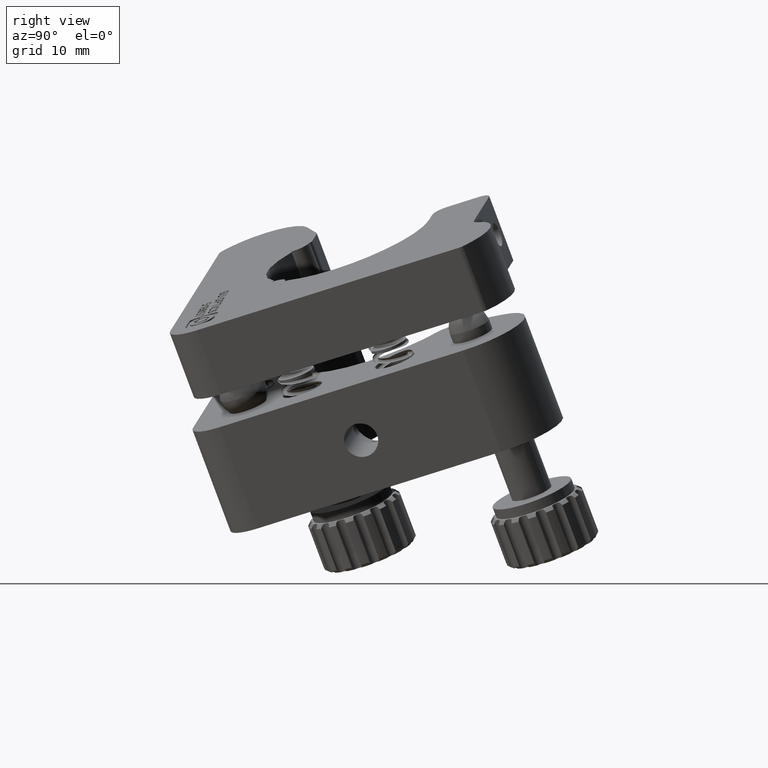
[diagram: clean part render]
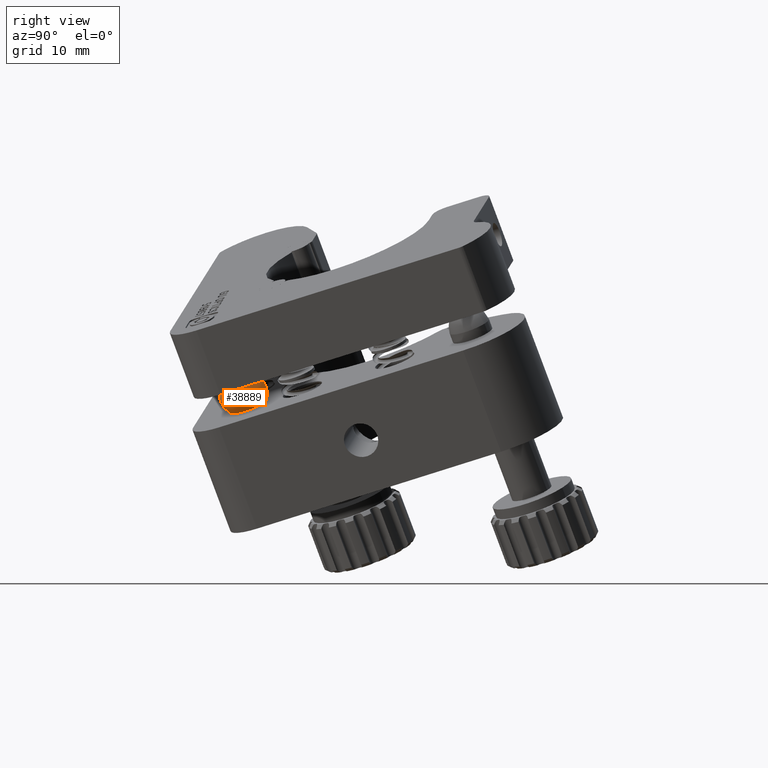
[diagram: same view with one face highlighted and labeled with its STEP entity id]
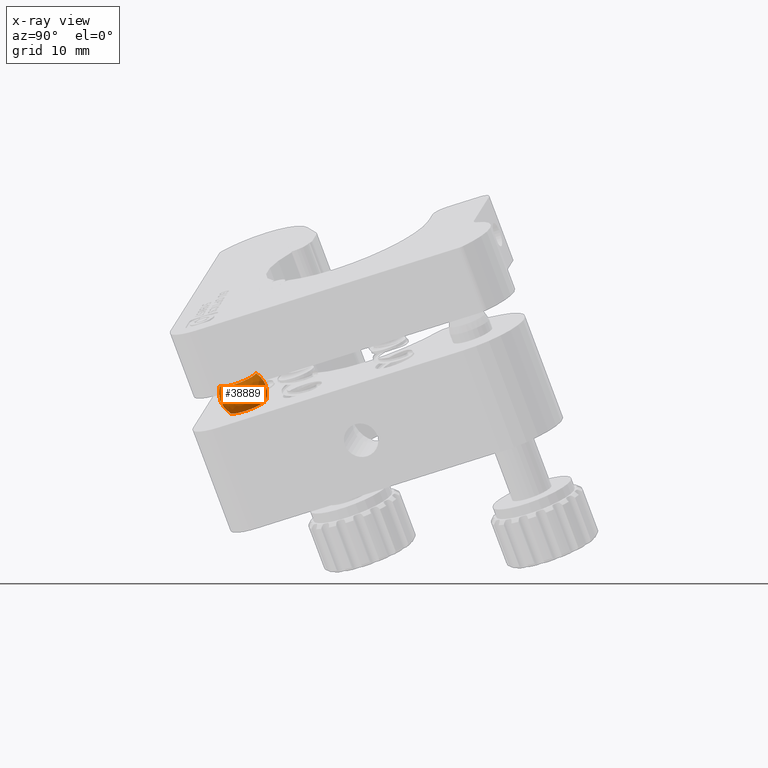
[diagram: x-ray of the same camera — body ghosted, the highlighted face saturated]
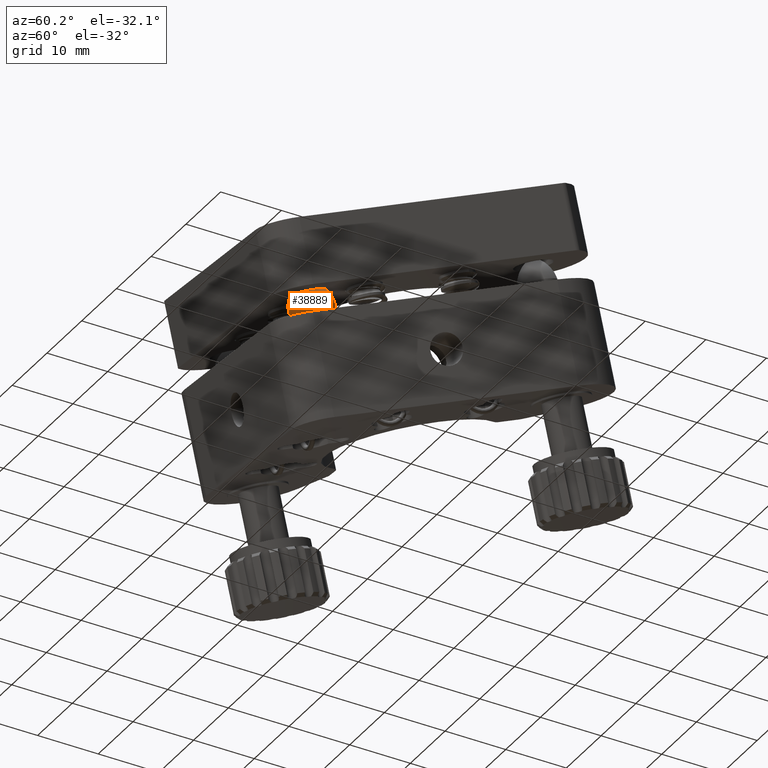
[diagram: same view with one face highlighted and labeled with its STEP entity id]
A machine part, right view. The second image highlights one B-rep face of the part: STEP entity #38889.
The next image is the same camera in x-ray: the body ghosted, the highlighted face saturated — about 0% of this face is hidden behind the body in this view.
A second angle (auxiliary view) of the same face is appended — the face is thin or edge-on in the first view.
In plain terms, the highlighted spherical surface has radius 3.5 mm.
Its self-contained STEP definition (entity closure, byte-faithful):
#1518 = SPHERICAL_SURFACE ( 'NONE', #18241, 3.500000000000000400 ) ;
#2175 = EDGE_CURVE ( 'NONE', #16969, #30432, #36352, .T. ) ;
#3893 = ORIENTED_EDGE ( 'NONE', *, *, #2175, .T. ) ;
#4607 = FACE_OUTER_BOUND ( 'NONE', #36171, .T. ) ;
#5902 = CARTESIAN_POINT ( 'NONE',  ( -578.5794070256066600, -1731.537541985149600, -520.1507189559243900 ) ) ;
#6578 = CARTESIAN_POINT ( 'NONE',  ( -579.0052202881432800, -1730.814605564245800, -522.0758283026312900 ) ) ;
#8432 = VERTEX_POINT ( 'NONE', #13981 ) ;
#9177 = DIRECTION ( 'NONE',  ( -0.2782062145128664200, 0.0000000000000000000, -0.9605213699894558100 ) ) ;
#9746 = CIRCLE ( 'NONE', #22216, 3.499999999999956000 ) ;
#9858 = DIRECTION ( 'NONE',  ( -0.9461293057665233200, 0.1724606737361695200, 0.2740376849709231800 ) ) ;
#11465 = DIRECTION ( 'NONE',  ( -0.2027682202555435900, 0.3442554385256142400, -0.9167187365271513000 ) ) ;
#13981 = CARTESIAN_POINT ( 'NONE',  ( -579.7120435922960300, -1733.398727231472300, -522.8899020251383300 ) ) ;
#15791 = DIRECTION ( 'NONE',  ( -0.9461293057665248800, 0.1724606737361764100, 0.2740376849709137400 ) ) ;
#16969 = VERTEX_POINT ( 'NONE', #27339 ) ;
#18241 = AXIS2_PLACEMENT_3D ( 'NONE', #21296, #41040, #21444 ) ;
#18251 = AXIS2_PLACEMENT_3D ( 'NONE', #5902, #28808, #9177 ) ;
#21296 = CARTESIAN_POINT ( 'NONE',  ( -578.5794070256066600, -1731.537541985149600, -520.1507189559243900 ) ) ;
#21352 = ORIENTED_EDGE ( 'NONE', *, *, #31957, .T. ) ;
#21444 = DIRECTION ( 'NONE',  ( -0.2524368943402398000, -0.9229005954381103200, -0.2907406151810166300 ) ) ;
#22216 = AXIS2_PLACEMENT_3D ( 'NONE', #35413, #15791, #38693 ) ;
#27253 = CIRCLE ( 'NONE', #38200, 2.800000000000028700 ) ;
#27339 = CARTESIAN_POINT ( 'NONE',  ( -577.4467704589172900, -1729.676356738826400, -517.4115358867104500 ) ) ;
#28312 = AXIS2_PLACEMENT_3D ( 'NONE', #34987, #11465, #31121 ) ;
#28808 = DIRECTION ( 'NONE',  ( 0.9461293057665248800, -0.1724606737361765200, -0.2740376849709138000 ) ) ;
#29476 = DIRECTION ( 'NONE',  ( -0.2027682202555435900, 0.3442554385256142400, -0.9167187365271513000 ) ) ;
#30127 = VERTEX_POINT ( 'NONE', #34871 ) ;
#30432 = VERTEX_POINT ( 'NONE', #42172 ) ;
#31121 = DIRECTION ( 'NONE',  ( 0.9461293057665337600, -0.1724606737361714100, -0.2740376849708865400 ) ) ;
#31957 = EDGE_CURVE ( 'NONE', #30432, #8432, #35152, .T. ) ;
#34770 = EDGE_CURVE ( 'NONE', #16969, #30127, #9746, .T. ) ;
#34871 = CARTESIAN_POINT ( 'NONE',  ( -578.2983969839905300, -1728.230483897019000, -521.2617545801244900 ) ) ;
#34987 = CARTESIAN_POINT ( 'NONE',  ( -578.1535937630699200, -1732.260478406053400, -518.2256096092173700 ) ) ;
#35152 = CIRCLE ( 'NONE', #18251, 3.499999999999956000 ) ;
#35413 = CARTESIAN_POINT ( 'NONE',  ( -578.5794070256066600, -1731.537541985149600, -520.1507189559243900 ) ) ;
#35660 = ORIENTED_EDGE ( 'NONE', *, *, #38565, .F. ) ;
#36171 = EDGE_LOOP ( 'NONE', ( #40140, #3893, #21352, #35660 ) ) ;
#36352 = CIRCLE ( 'NONE', #28312, 2.799999999999998000 ) ;
#38200 = AXIS2_PLACEMENT_3D ( 'NONE', #6578, #29476, #9858 ) ;
#38565 = EDGE_CURVE ( 'NONE', #30127, #8432, #27253, .T. ) ;
#38693 = DIRECTION ( 'NONE',  ( 0.2782062145128664200, 0.0000000000000000000, 0.9605213699894558100 ) ) ;
#38889 = ADVANCED_FACE ( 'NONE', ( #4607 ), #1518, .T. ) ;
#40140 = ORIENTED_EDGE ( 'NONE', *, *, #34770, .F. ) ;
#41040 = DIRECTION ( 'NONE',  ( -0.9461293057665277600, 0.1724606737361659700, 0.2740376849709104700 ) ) ;
#42172 = CARTESIAN_POINT ( 'NONE',  ( -578.8604170672226700, -1734.844600073279900, -519.0396833317242900 ) ) ;